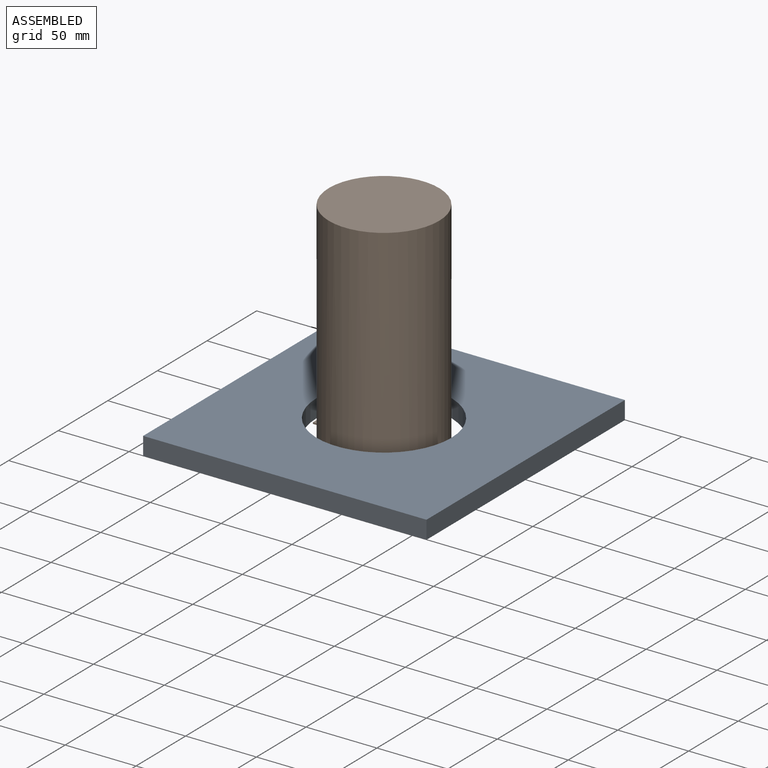
[diagram: assembled view]
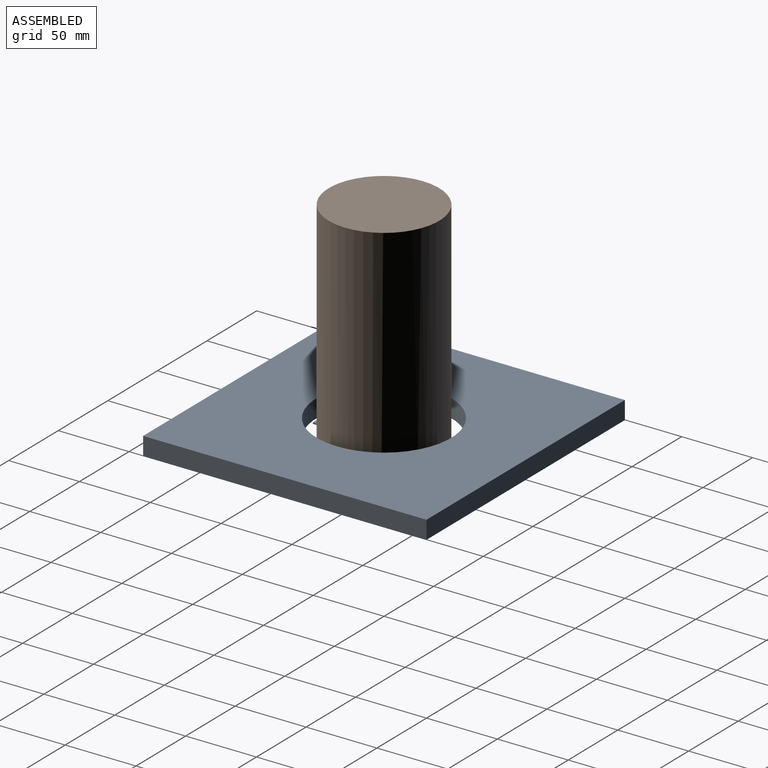
[diagram: assembled view, second angle]
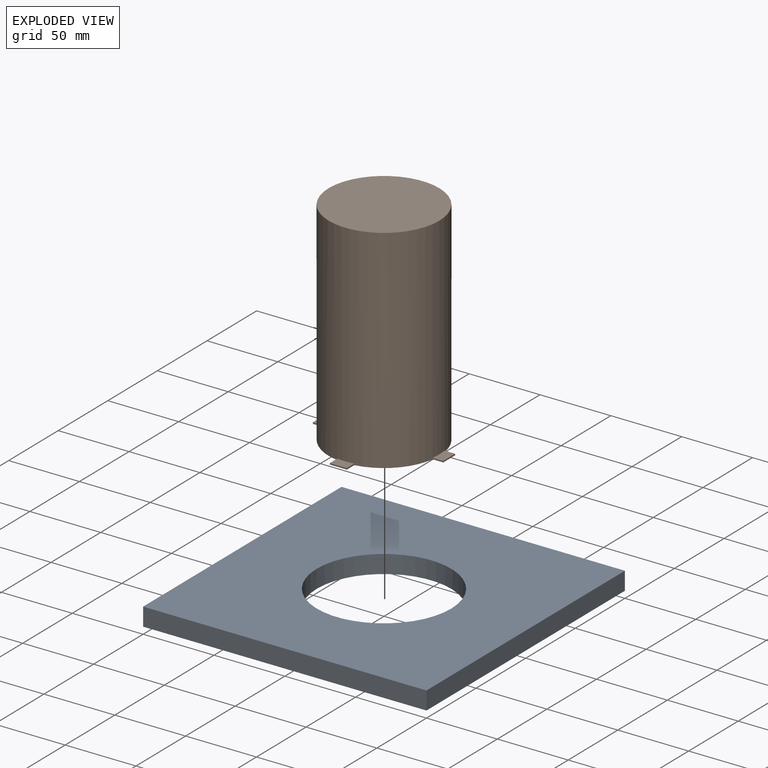
[diagram: exploded view]
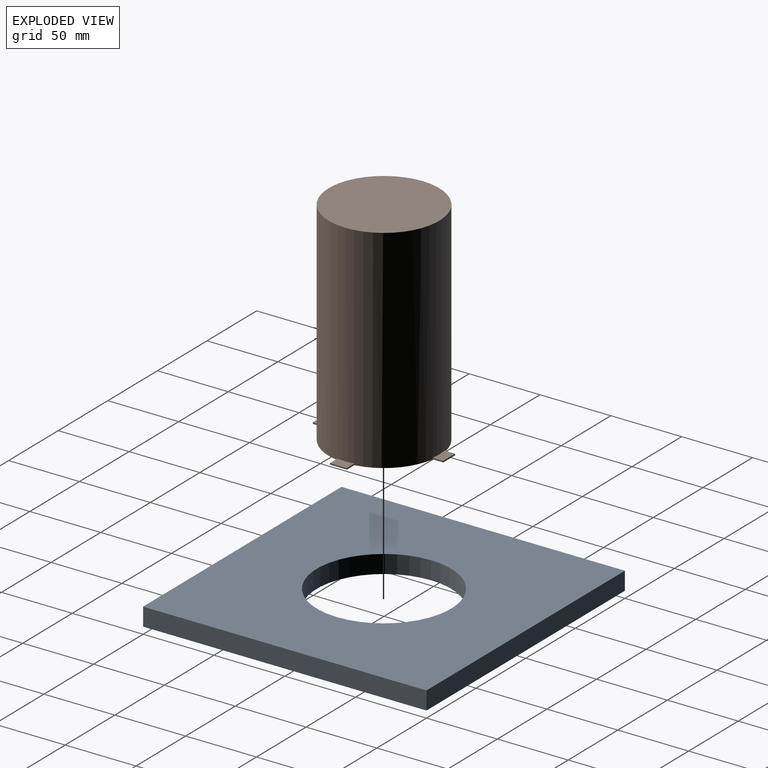
[diagram: exploded view, second angle]
ASSEMBLY  parts=2 mates=2
PART A: 7 faces, bbox 200x200x12.8 mm
  f0: plane 200x12.8mm, normal (0,-1,0), area 2560mm2, adj f1,f4,f5,f6
  f1: plane 200x12.8mm, normal (1,0,0), area 2560mm2, adj f0,f2,f5,f6
  f2: plane 200x12.8mm, normal (0,1,0), area 2560mm2, adj f1,f4,f5,f6
  f3: cylinder r=47.5mm len=95mm, axis (0,0,-1), area 3820.2mm2, adj f5,f6
  f4: plane 200x12.8mm, normal (-1,0,0), area 2560mm2, adj f0,f2,f5,f6
  f5: plane 200x200mm, normal (0,0,1), area 32911.8mm2, adj f0,f1,f2,f3,f4
  f6: plane 200x200mm, normal (0,0,-1), area 32911.8mm2, adj f0,f1,f2,f3,f4
PART B: 21 faces, bbox 92x92x150 mm
  f0: cylinder r=39mm len=150mm, axis (0,0,-1), area 36708.4mm2, adj f1,f2,f3,f4,f6,f7,f8,f10
  f1: plane 78x78mm, normal (0,0,1), area 4778.4mm2, adj f0
  f2: plane 92x92mm, normal (0,0,-1), area 585.3mm2, adj f0,f3,f4,f5,f7,f8,f9,f11
  f3: plane 7.46x1mm, normal (1,0,0), area 7.5mm2, adj f0,f2,f5,f6
  f4: plane 7.46x1mm, normal (-1,0,0), area 7.5mm2, adj f0,f2,f5,f6
  f5: plane 12x1mm, normal (0,-1,0), area 12mm2, adj f2,f3,f4,f6
  f6: plane 12x7.46mm, normal (0,0,1), area 85.9mm2, adj f0,f3,f4,f5
  f7: plane 7.46x1mm, normal (0,-1,0), area 7.5mm2, adj f0,f2,f9,f10
  f8: plane 7.46x1mm, normal (0,1,0), area 7.5mm2, adj f0,f2,f9,f10
  f9: plane 12x1mm, normal (-1,0,0), area 12mm2, adj f2,f7,f8,f10
  f10: plane 12x7.46mm, normal (0,0,1), area 85.9mm2, adj f0,f7,f8,f9
  f11: plane 7.46x1mm, normal (-1,0,0), area 7.5mm2, adj f0,f2,f13,f14
  f12: plane 7.46x1mm, normal (1,0,0), area 7.5mm2, adj f0,f2,f13,f14
  f13: plane 12x1mm, normal (0,1,0), area 12mm2, adj f2,f11,f12,f14
  f14: plane 12x7.46mm, normal (0,0,1), area 85.9mm2, adj f0,f11,f12,f13
  f15: plane 7.46x1mm, normal (0,1,0), area 7.5mm2, adj f0,f2,f17,f18
  f16: plane 7.46x1mm, normal (0,-1,0), area 7.5mm2, adj f0,f2,f17,f18
  f17: plane 12x1mm, normal (1,0,0), area 12mm2, adj f2,f15,f16,f18
  f18: plane 12x7.46mm, normal (0,0,1), area 85.9mm2, adj f0,f15,f16,f17
  f19: cylinder r=38mm len=149mm, axis (0,0,-1), area 35575.4mm2, adj f2,f20
  f20: plane 76x76mm, normal (0,0,-1), area 4536.5mm2, adj f19
PLACE A at identity fixed
PLACE B t=(0,0,-1)mm
MATE planar B.f6 <-> A.f3  axis (0,0,1) through (0,-42.42,0)mm
MATE slider B.f0 <-> A.f3  axis (0,0,-1) through (0,0,74)mm
